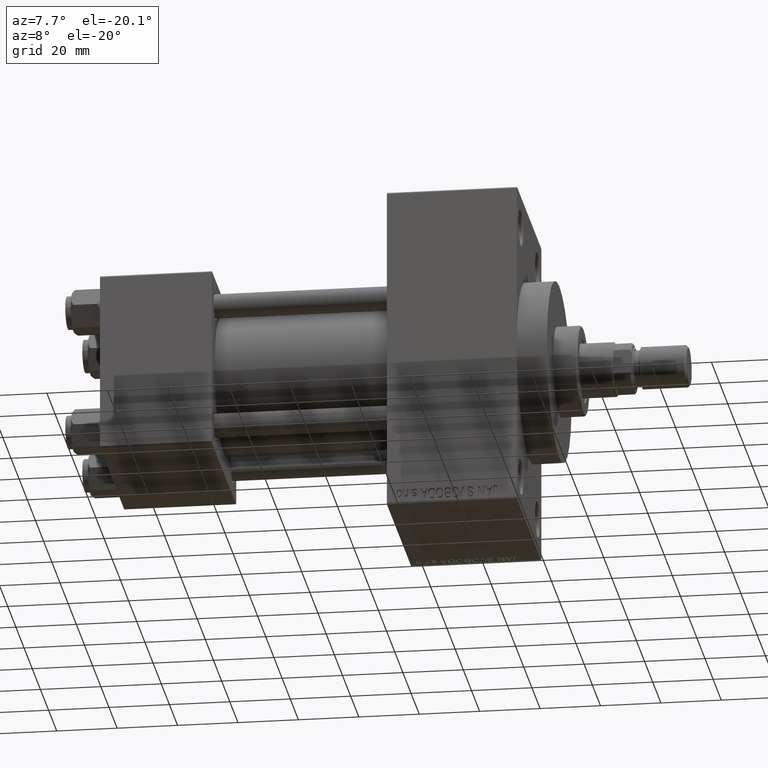
[diagram: clean part render]
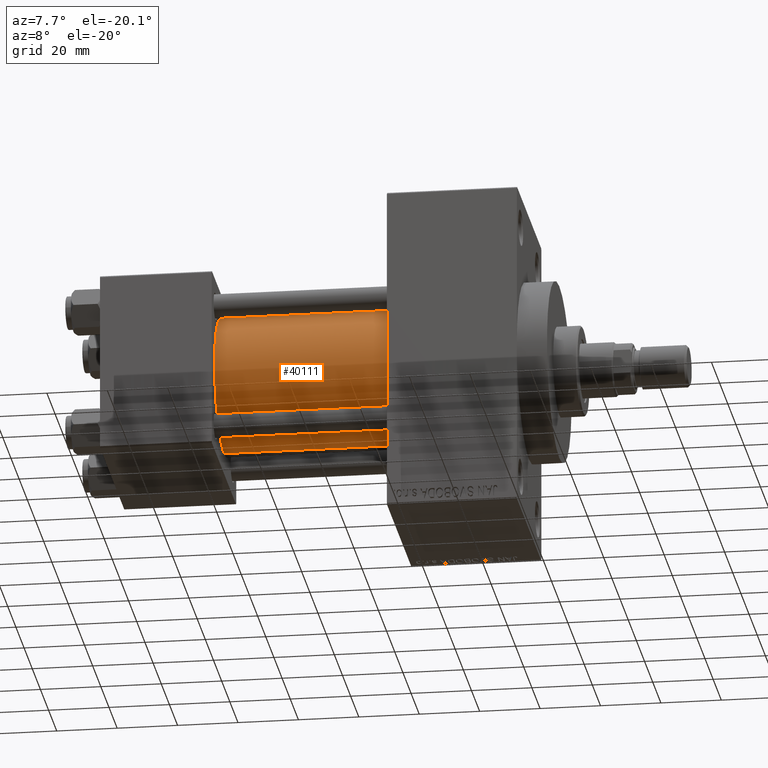
[diagram: same view with one face highlighted and labeled with its STEP entity id]
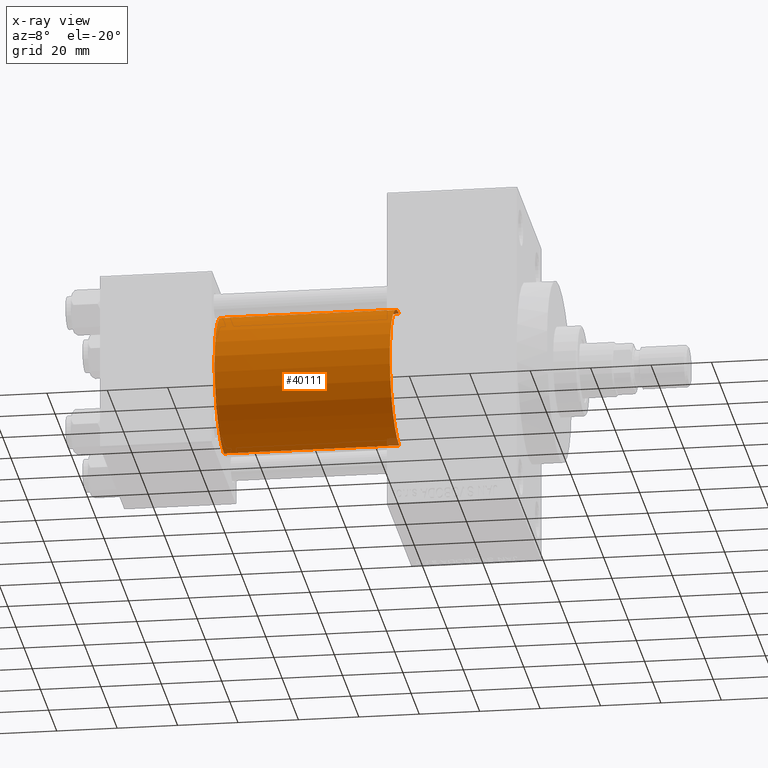
[diagram: x-ray of the same camera — body ghosted, the highlighted face saturated]
A machine part, auxiliary view. The second image highlights one B-rep face of the part: STEP entity #40111.
The next image is the same camera in x-ray: the body ghosted, the highlighted face saturated — about 0% of this face is hidden behind the body in this view.
In plain terms, the highlighted cylindrical surface (partial cylindrical patch) has radius 23 mm, axis along (-1, -0, -0).
Its self-contained STEP definition (entity closure, byte-faithful):
#237 = EDGE_CURVE ( 'NONE', #4592, #28173, #20199, .T. ) ;
#1447 = EDGE_CURVE ( 'NONE', #28173, #40343, #17616, .T. ) ;
#1813 = DIRECTION ( 'NONE',  ( 1.000000000000000000, -0.000000000000000000, 0.000000000000000000 ) ) ;
#4592 = VERTEX_POINT ( 'NONE', #23718 ) ;
#4767 = AXIS2_PLACEMENT_3D ( 'NONE', #36787, #1813, #32020 ) ;
#6987 = VECTOR ( 'NONE', #43016, 1000.000000000000000 ) ;
#7879 = ORIENTED_EDGE ( 'NONE', *, *, #1447, .T. ) ;
#8270 = AXIS2_PLACEMENT_3D ( 'NONE', #48724, #41676, #25546 ) ;
#10084 = CARTESIAN_POINT ( 'NONE',  ( 95.00000000000000000, 2.146024240737012665E-16, -23.00000000000000000 ) ) ;
#10320 = CARTESIAN_POINT ( 'NONE',  ( 37.00000000000000000, -2.602085213965210642E-15, 23.00000000000000000 ) ) ;
#10676 = CARTESIAN_POINT ( 'NONE',  ( 95.00000000000000000, -2.602085213965210642E-15, 0.000000000000000000 ) ) ;
#11419 = DIRECTION ( 'NONE',  ( -1.000000000000000000, -0.000000000000000000, -0.000000000000000000 ) ) ;
#14215 = CYLINDRICAL_SURFACE ( 'NONE', #25996, 23.00000000000000000 ) ;
#15011 = ORIENTED_EDGE ( 'NONE', *, *, #16577, .F. ) ;
#15937 = VECTOR ( 'NONE', #16184, 1000.000000000000000 ) ;
#16184 = DIRECTION ( 'NONE',  ( -1.000000000000000000, -0.000000000000000000, -0.000000000000000000 ) ) ;
#16571 = ORIENTED_EDGE ( 'NONE', *, *, #237, .T. ) ;
#16577 = EDGE_CURVE ( 'NONE', #4592, #48542, #37177, .T. ) ;
#17313 = EDGE_LOOP ( 'NONE', ( #31240, #15011, #16571, #7879 ) ) ;
#17616 = CIRCLE ( 'NONE', #4767, 23.00000000000000000 ) ;
#20199 = LINE ( 'NONE', #23974, #15937 ) ;
#23718 = CARTESIAN_POINT ( 'NONE',  ( 95.00000000000000000, -2.602085213965210642E-15, 23.00000000000000000 ) ) ;
#23974 = CARTESIAN_POINT ( 'NONE',  ( 95.00000000000000000, -2.602085213965210642E-15, 23.00000000000000000 ) ) ;
#25546 = DIRECTION ( 'NONE',  ( 0.000000000000000000, 0.000000000000000000, -1.000000000000000000 ) ) ;
#25996 = AXIS2_PLACEMENT_3D ( 'NONE', #10676, #11419, #41411 ) ;
#28173 = VERTEX_POINT ( 'NONE', #10320 ) ;
#31240 = ORIENTED_EDGE ( 'NONE', *, *, #45411, .F. ) ;
#32020 = DIRECTION ( 'NONE',  ( 0.000000000000000000, 0.000000000000000000, 1.000000000000000000 ) ) ;
#35192 = CARTESIAN_POINT ( 'NONE',  ( 95.00000000000000000, 2.146024240737012665E-16, -23.00000000000000000 ) ) ;
#36787 = CARTESIAN_POINT ( 'NONE',  ( 37.00000000000000000, -2.602085213965210642E-15, 0.000000000000000000 ) ) ;
#37177 = CIRCLE ( 'NONE', #8270, 23.00000000000000000 ) ;
#37375 = FACE_OUTER_BOUND ( 'NONE', #17313, .T. ) ;
#38985 = LINE ( 'NONE', #35192, #6987 ) ;
#40111 = ADVANCED_FACE ( 'NONE', ( #37375 ), #14215, .T. ) ;
#40343 = VERTEX_POINT ( 'NONE', #49526 ) ;
#41411 = DIRECTION ( 'NONE',  ( 0.000000000000000000, 0.000000000000000000, 1.000000000000000000 ) ) ;
#41676 = DIRECTION ( 'NONE',  ( 1.000000000000000000, 0.000000000000000000, 0.000000000000000000 ) ) ;
#43016 = DIRECTION ( 'NONE',  ( -1.000000000000000000, -0.000000000000000000, -0.000000000000000000 ) ) ;
#45411 = EDGE_CURVE ( 'NONE', #48542, #40343, #38985, .T. ) ;
#48542 = VERTEX_POINT ( 'NONE', #10084 ) ;
#48724 = CARTESIAN_POINT ( 'NONE',  ( 95.00000000000000000, -2.602085213965210642E-15, 0.000000000000000000 ) ) ;
#49526 = CARTESIAN_POINT ( 'NONE',  ( 37.00000000000000000, 2.146024240737012665E-16, -23.00000000000000000 ) ) ;